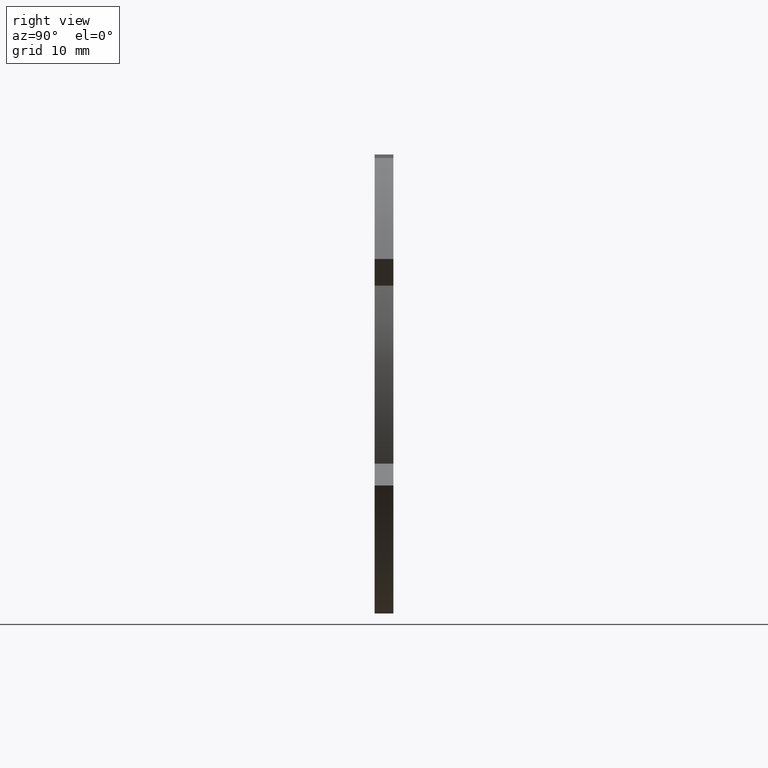
[diagram: clean part render]
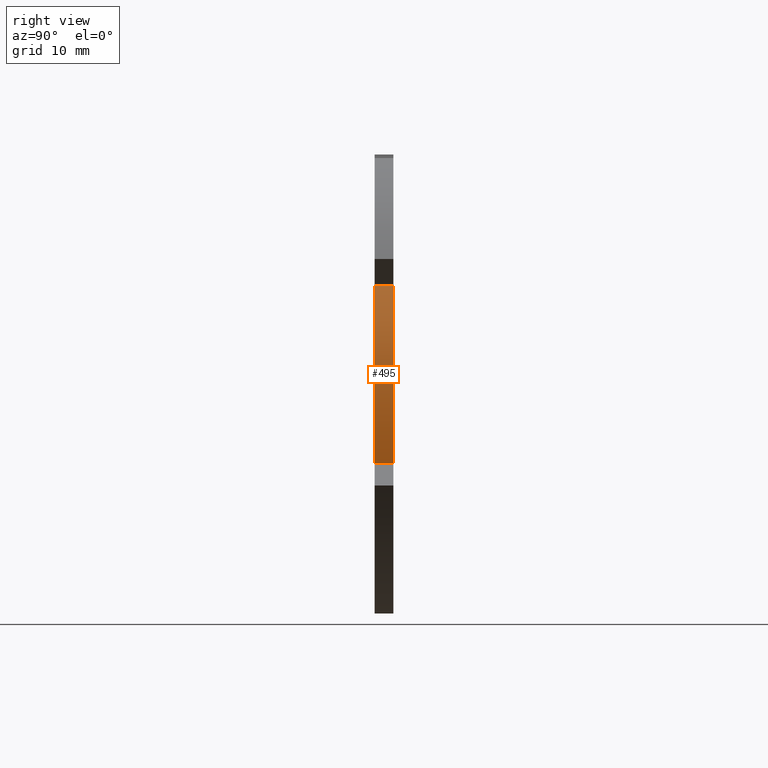
[diagram: same view with one face highlighted and labeled with its STEP entity id]
A machine part, right view. The second image highlights one B-rep face of the part: STEP entity #495.
In plain terms, the highlighted face is a freeform B-spline surface patch.
Its self-contained STEP definition (entity closure, byte-faithful):
#126=CARTESIAN_POINT('',(18.500357144043949,0.0,10.000344786956999));
#127=VERTEX_POINT('',#126);
#133=CARTESIAN_POINT('',(17.500414805350200,0.0,-9.000202269632389));
#134=VERTEX_POINT('',#133);
#135=CARTESIAN_POINT('',(17.500414805350200,0.0,-9.000202269632394));
#136=CARTESIAN_POINT('',(22.241226133301584,0.0,0.276888441157541));
#137=CARTESIAN_POINT('',(18.500357144043939,0.0,10.000344786956990));
#145=(BOUNDED_CURVE()B_SPLINE_CURVE(2,(#135,#136,#137),.UNSPECIFIED.,.F.,.U.)CURVE()GEOMETRIC_REPRESENTATION_ITEM()QUASI_UNIFORM_CURVE()RATIONAL_B_SPLINE_CURVE((1.0,0.913150525690982,1.0))REPRESENTATION_ITEM(''));
#146=EDGE_CURVE('',#134,#127,#145,.T.);
#242=CARTESIAN_POINT('',(17.500414805350200,-2.0,-9.000202269632389));
#243=VERTEX_POINT('',#242);
#249=CARTESIAN_POINT('',(18.500357144043949,-2.0,10.000344786956999));
#250=VERTEX_POINT('',#249);
#251=CARTESIAN_POINT('',(17.500414805350200,-2.0,-9.000202269632394));
#252=CARTESIAN_POINT('',(22.241226133301584,-2.000000000000000,0.276888441157541));
#253=CARTESIAN_POINT('',(18.500357144043939,-2.0,10.000344786956990));
#261=(BOUNDED_CURVE()B_SPLINE_CURVE(2,(#251,#252,#253),.UNSPECIFIED.,.F.,.U.)CURVE()GEOMETRIC_REPRESENTATION_ITEM()QUASI_UNIFORM_CURVE()RATIONAL_B_SPLINE_CURVE((1.0,0.913150525690982,1.0))REPRESENTATION_ITEM(''));
#262=EDGE_CURVE('',#243,#250,#261,.T.);
#461=CARTESIAN_POINT('',(17.500414805350200,-2.0,-9.000202269632389));
#462=CARTESIAN_POINT('',(17.500414805350200,0.0,-9.000202269632389));
#463=QUASI_UNIFORM_CURVE('',1,(#461,#462),.UNSPECIFIED.,.F.,.U.);
#464=EDGE_CURVE('',#243,#134,#463,.T.);
#471=CARTESIAN_POINT('',(17.054810097271481,-2.050000000000000,-9.830390841335756));
#472=CARTESIAN_POINT('',(17.054810097271481,0.051250000000000,-9.830390841335756));
#473=CARTESIAN_POINT('',(22.733495384954111,-2.049999999999999,0.255320408776751));
#474=CARTESIAN_POINT('',(22.733495384954111,0.051250000000000,0.255320408776751));
#475=CARTESIAN_POINT('',(18.141274460681064,-2.049999999999999,10.879846045239677));
#476=CARTESIAN_POINT('',(18.141274460681064,0.051250000000000,10.879846045239677));
#484=(BOUNDED_SURFACE()B_SPLINE_SURFACE(1,2,((#471,#473,#475),(#472,#474,#476)),.UNSPECIFIED.,.F.,.F.,.U.)B_SPLINE_SURFACE_WITH_KNOTS((2,2),(3,3),(0.0,2.101250000000000),(0.0,21.877565981152809),.UNSPECIFIED.)GEOMETRIC_REPRESENTATION_ITEM()RATIONAL_B_SPLINE_SURFACE(((0.999677684304771,0.891767126944813,0.991159725809228),(0.999677684304771,0.891767126944813,0.991159725809228)))REPRESENTATION_ITEM('')SURFACE());
#485=ORIENTED_EDGE('',*,*,#146,.T.);
#486=CARTESIAN_POINT('',(18.500357144043949,-2.0,10.000344786956999));
#487=CARTESIAN_POINT('',(18.500357144043949,0.0,10.000344786956999));
#488=QUASI_UNIFORM_CURVE('',1,(#486,#487),.UNSPECIFIED.,.F.,.U.);
#489=EDGE_CURVE('',#250,#127,#488,.T.);
#490=ORIENTED_EDGE('',*,*,#489,.F.);
#491=ORIENTED_EDGE('',*,*,#262,.F.);
#492=ORIENTED_EDGE('',*,*,#464,.T.);
#493=EDGE_LOOP('',(#485,#490,#491,#492));
#494=FACE_OUTER_BOUND('',#493,.T.);
#495=ADVANCED_FACE('',(#494),#484,.T.);